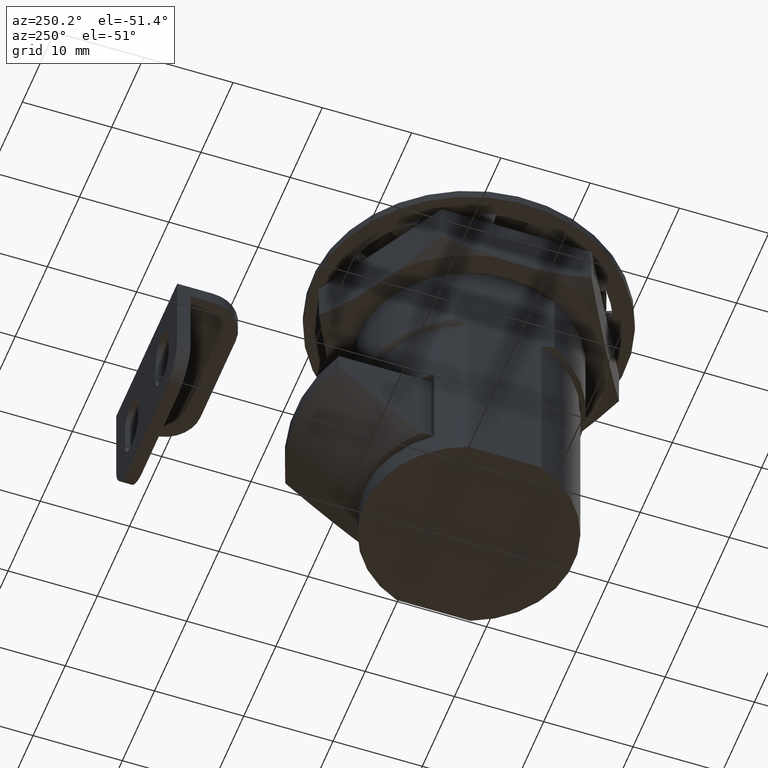
[diagram: clean part render]
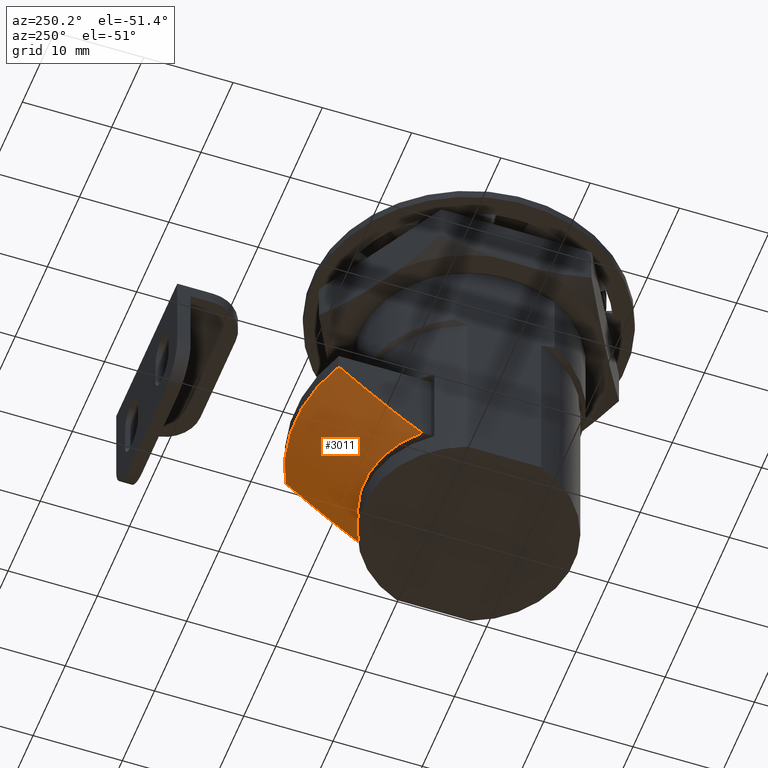
[diagram: same view with one face highlighted and labeled with its STEP entity id]
A machine part, auxiliary view. The second image highlights one B-rep face of the part: STEP entity #3011.
In plain terms, the highlighted conical surface has half-angle 46.922 deg.
Its self-contained STEP definition (entity closure, byte-faithful):
#220=CONICAL_SURFACE('',#3186,15.6,0.818942622959127);
#232=(
BOUNDED_CURVE()
B_SPLINE_CURVE(2,(#4103,#4104,#4105),.UNSPECIFIED.,.F.,.F.)
B_SPLINE_CURVE_WITH_KNOTS((3,3),(0.,1.17658199075054),.UNSPECIFIED.)
CURVE()
GEOMETRIC_REPRESENTATION_ITEM()
RATIONAL_B_SPLINE_CURVE((1.,1.04761909290913,1.))
REPRESENTATION_ITEM('')
);
#233=(
BOUNDED_CURVE()
B_SPLINE_CURVE(2,(#4113,#4114,#4115),.UNSPECIFIED.,.F.,.F.)
B_SPLINE_CURVE_WITH_KNOTS((3,3),(0.,1.17658199075054),.UNSPECIFIED.)
CURVE()
GEOMETRIC_REPRESENTATION_ITEM()
RATIONAL_B_SPLINE_CURVE((1.,1.04761909290916,1.))
REPRESENTATION_ITEM('')
);
#253=FACE_OUTER_BOUND('',#422,.T.);
#422=EDGE_LOOP('',(#2037,#2038,#2039,#2040));
#611=CIRCLE('',#3187,19.45);
#612=CIRCLE('',#3188,11.75);
#1267=VERTEX_POINT('',#4100);
#1268=VERTEX_POINT('',#4102);
#1270=VERTEX_POINT('',#4110);
#1271=VERTEX_POINT('',#4112);
#1575=EDGE_CURVE('',#1268,#1267,#232,.T.);
#1579=EDGE_CURVE('',#1271,#1270,#233,.T.);
#1581=EDGE_CURVE('',#1270,#1268,#611,.T.);
#1582=EDGE_CURVE('',#1271,#1267,#612,.T.);
#2037=ORIENTED_EDGE('',*,*,#1579,.T.);
#2038=ORIENTED_EDGE('',*,*,#1581,.T.);
#2039=ORIENTED_EDGE('',*,*,#1575,.T.);
#2040=ORIENTED_EDGE('',*,*,#1582,.F.);
#3011=ADVANCED_FACE('',(#253),#220,.T.);
#3186=AXIS2_PLACEMENT_3D('',#4117,#3406,#3407);
#3187=AXIS2_PLACEMENT_3D('',#4118,#3408,#3409);
#3188=AXIS2_PLACEMENT_3D('',#4119,#3410,#3411);
#3406=DIRECTION('center_axis',(0.,0.,1.));
#3407=DIRECTION('ref_axis',(-1.,-2.22044604925031E-16,0.));
#3408=DIRECTION('center_axis',(0.,0.,-1.));
#3409=DIRECTION('ref_axis',(-1.,-3.3620635552916E-16,0.));
#3410=DIRECTION('center_axis',(0.,0.,-1.));
#3411=DIRECTION('ref_axis',(-1.,1.55903658777149E-16,0.));
#4100=CARTESIAN_POINT('',(8.35,8.26680107417617,-38.8));
#4102=CARTESIAN_POINT('',(8.35,17.5664452863976,-31.6));
#4103=CARTESIAN_POINT('Ctrl Pts',(8.34999999999999,17.5664452863976,-31.6));
#4104=CARTESIAN_POINT('Ctrl Pts',(8.35,11.7690709297403,-36.4959547823263));
#4105=CARTESIAN_POINT('Ctrl Pts',(8.35,8.26680107417617,-38.8));
#4110=CARTESIAN_POINT('',(-8.35,17.5664452863976,-31.6));
#4112=CARTESIAN_POINT('',(-8.35,8.26680107417616,-38.8));
#4113=CARTESIAN_POINT('Ctrl Pts',(-8.35,8.26680107417616,-38.8));
#4114=CARTESIAN_POINT('Ctrl Pts',(-8.35,11.7690709297403,-36.4959547823263));
#4115=CARTESIAN_POINT('Ctrl Pts',(-8.35,17.5664452863976,-31.6));
#4117=CARTESIAN_POINT('Origin',(0.,0.,-35.2));
#4118=CARTESIAN_POINT('Origin',(5.02596333102258E-17,2.22044604925031E-15,
-31.6));
#4119=CARTESIAN_POINT('Origin',(-7.19479994499069E-16,-4.44089209850063E-15,
-38.8));